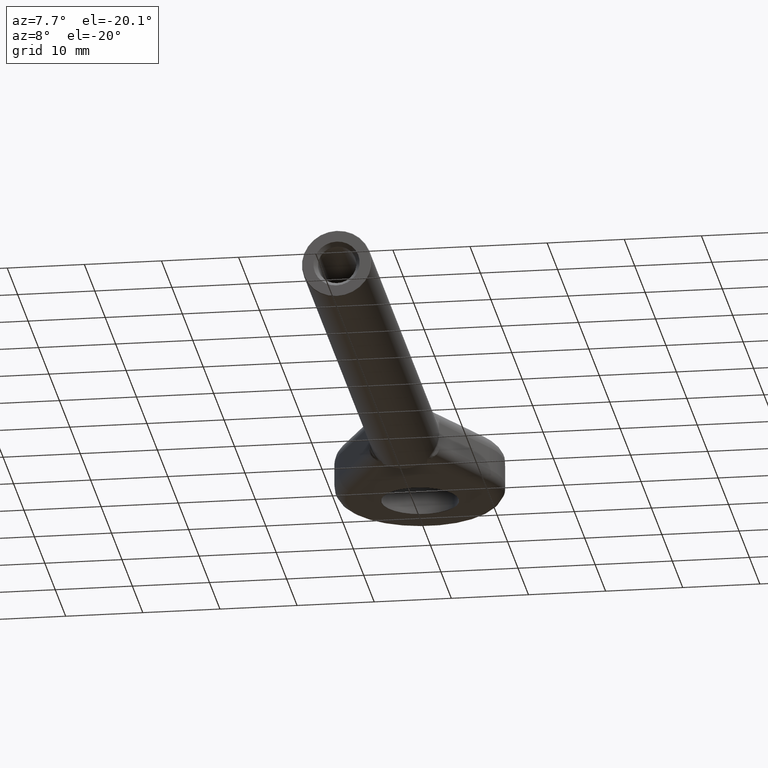
[diagram: clean part render]
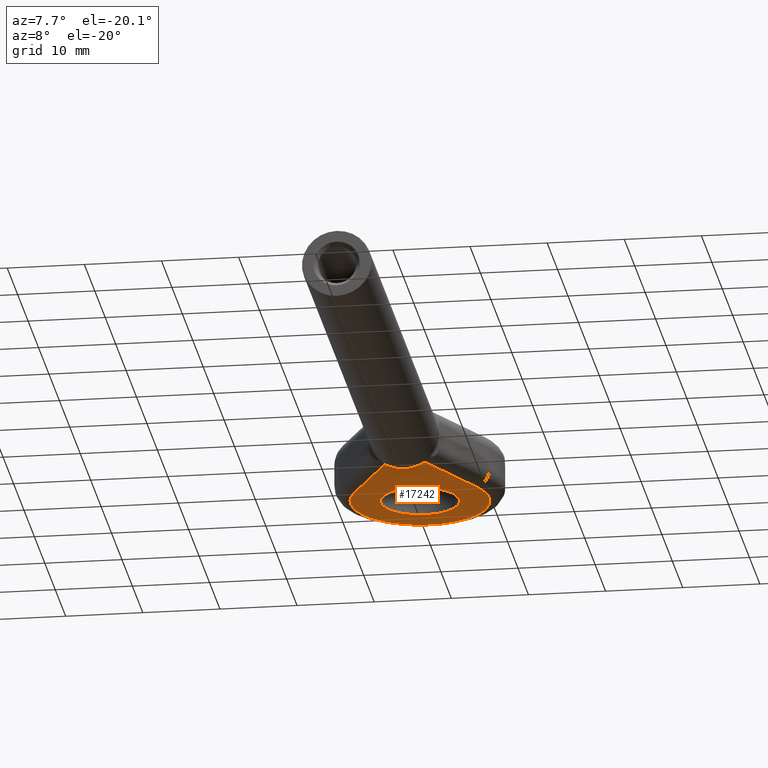
[diagram: same view with one face highlighted and labeled with its STEP entity id]
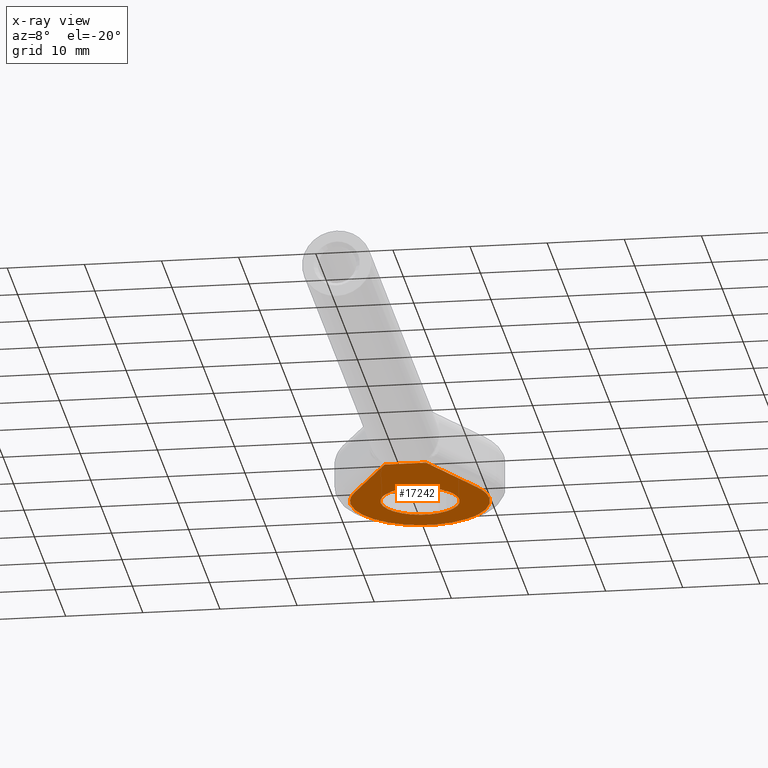
[diagram: x-ray of the same camera — body ghosted, the highlighted face saturated]
A machine part, auxiliary view. The second image highlights one B-rep face of the part: STEP entity #17242.
The next image is the same camera in x-ray: the body ghosted, the highlighted face saturated — about 0% of this face is hidden behind the body in this view.
In plain terms, the highlighted planar face has unit normal (0, 0, 1).
Its self-contained STEP definition (entity closure, byte-faithful):
#301 = DIRECTION ( 'NONE',  ( 1.000000000000000000, 0.000000000000000000, 0.000000000000000000 ) ) ;
#318 = ORIENTED_EDGE ( 'NONE', *, *, #3663, .T. ) ;
#355 = DIRECTION ( 'NONE',  ( 0.000000000000000000, 0.000000000000000000, 1.000000000000000000 ) ) ;
#572 = AXIS2_PLACEMENT_3D ( 'NONE', #17366, #949, #10495 ) ;
#949 = DIRECTION ( 'NONE',  ( -0.000000000000000000, -0.000000000000000000, -1.000000000000000000 ) ) ;
#1040 = ORIENTED_EDGE ( 'NONE', *, *, #1490, .T. ) ;
#1440 = EDGE_CURVE ( 'NONE', #13990, #12520, #3739, .T. ) ;
#1483 = CARTESIAN_POINT ( 'NONE',  ( -9.000000000000007105, 80.00000000000000000, -3.500000000000000000 ) ) ;
#1490 = EDGE_CURVE ( 'NONE', #16496, #13120, #10352, .T. ) ;
#1587 = CARTESIAN_POINT ( 'NONE',  ( 5.100000000000004086, 80.00000000000000000, -3.499999999999999556 ) ) ;
#1953 = EDGE_CURVE ( 'NONE', #5228, #13624, #10817, .T. ) ;
#2063 = PLANE ( 'NONE',  #14186 ) ;
#2175 = EDGE_CURVE ( 'NONE', #12520, #5386, #2920, .T. ) ;
#2217 = CARTESIAN_POINT ( 'NONE',  ( -5.100000000000004086, 80.00000000000000000, -3.499999999999999556 ) ) ;
#2490 = EDGE_LOOP ( 'NONE', ( #1040, #12752, #318, #3288, #17628, #10219 ) ) ;
#2605 = CIRCLE ( 'NONE', #5813, 9.000000000000007105 ) ;
#2920 = CIRCLE ( 'NONE', #8825, 9.000000000000007105 ) ;
#3288 = ORIENTED_EDGE ( 'NONE', *, *, #1440, .T. ) ;
#3438 = DIRECTION ( 'NONE',  ( -0.4682553809516096233, 0.8835931746057474889, -0.000000000000000000 ) ) ;
#3525 = VECTOR ( 'NONE', #3438, 999.9999999999998863 ) ;
#3663 = EDGE_CURVE ( 'NONE', #11788, #13990, #10578, .T. ) ;
#3739 = CIRCLE ( 'NONE', #572, 9.000000000000007105 ) ;
#3849 = EDGE_LOOP ( 'NONE', ( #11141, #8873 ) ) ;
#4286 = DIRECTION ( 'NONE',  ( -0.000000000000000000, -0.000000000000000000, -1.000000000000000000 ) ) ;
#5040 = CARTESIAN_POINT ( 'NONE',  ( 7.952338571451731397, 75.78570157143551000, -3.500000000000000000 ) ) ;
#5226 = CARTESIAN_POINT ( 'NONE',  ( 2.686967744623051768, 65.84999999999999432, -3.500000000000000000 ) ) ;
#5228 = VERTEX_POINT ( 'NONE', #2217 ) ;
#5386 = VERTEX_POINT ( 'NONE', #7038 ) ;
#5640 = VECTOR ( 'NONE', #8302, 1000.000000000000000 ) ;
#5813 = AXIS2_PLACEMENT_3D ( 'NONE', #8560, #9925, #301 ) ;
#7038 = CARTESIAN_POINT ( 'NONE',  ( 9.000000000000007105, 80.00000000000000000, -3.500000000000000000 ) ) ;
#7491 = CARTESIAN_POINT ( 'NONE',  ( -7.952338571451731397, 75.78570157143551000, -3.500000000000000000 ) ) ;
#8209 = CARTESIAN_POINT ( 'NONE',  ( 0.000000000000000000, 80.00000000000000000, -3.500000000000000000 ) ) ;
#8302 = DIRECTION ( 'NONE',  ( -1.000000000000000000, -0.000000000000000000, 0.000000000000000000 ) ) ;
#8560 = CARTESIAN_POINT ( 'NONE',  ( 0.000000000000000000, 80.00000000000000000, -3.500000000000000000 ) ) ;
#8696 = DIRECTION ( 'NONE',  ( 0.000000000000000000, 0.000000000000000000, 1.000000000000000000 ) ) ;
#8733 = CARTESIAN_POINT ( 'NONE',  ( 0.000000000000000000, 80.00000000000000000, -3.500000000000000000 ) ) ;
#8825 = AXIS2_PLACEMENT_3D ( 'NONE', #8209, #4286, #10948 ) ;
#8873 = ORIENTED_EDGE ( 'NONE', *, *, #1953, .T. ) ;
#8898 = CARTESIAN_POINT ( 'NONE',  ( 0.000000000000000000, 80.00000000000000000, -3.500000000000000000 ) ) ;
#9377 = FACE_OUTER_BOUND ( 'NONE', #2490, .T. ) ;
#9793 = CARTESIAN_POINT ( 'NONE',  ( -7.952338571451736726, 75.78570157143552422, -3.500000000000000000 ) ) ;
#9925 = DIRECTION ( 'NONE',  ( -0.000000000000000000, -0.000000000000000000, -1.000000000000000000 ) ) ;
#10044 = EDGE_CURVE ( 'NONE', #13120, #11788, #14575, .T. ) ;
#10088 = DIRECTION ( 'NONE',  ( 1.000000000000000000, 0.000000000000000000, 0.000000000000000000 ) ) ;
#10219 = ORIENTED_EDGE ( 'NONE', *, *, #11136, .T. ) ;
#10352 = LINE ( 'NONE', #5040, #14198 ) ;
#10495 = DIRECTION ( 'NONE',  ( 1.000000000000000000, 0.000000000000000000, 0.000000000000000000 ) ) ;
#10578 = LINE ( 'NONE', #7491, #3525 ) ;
#10644 = AXIS2_PLACEMENT_3D ( 'NONE', #8733, #355, #10088 ) ;
#10817 = CIRCLE ( 'NONE', #10644, 5.100000000000004086 ) ;
#10948 = DIRECTION ( 'NONE',  ( 1.000000000000000000, 0.000000000000000000, 0.000000000000000000 ) ) ;
#11136 = EDGE_CURVE ( 'NONE', #5386, #16496, #2605, .T. ) ;
#11141 = ORIENTED_EDGE ( 'NONE', *, *, #13235, .T. ) ;
#11698 = CARTESIAN_POINT ( 'NONE',  ( -2.686967744623057985, 65.85000000000000853, -3.500000000000000000 ) ) ;
#11788 = VERTEX_POINT ( 'NONE', #11698 ) ;
#12520 = VERTEX_POINT ( 'NONE', #1483 ) ;
#12752 = ORIENTED_EDGE ( 'NONE', *, *, #10044, .T. ) ;
#13120 = VERTEX_POINT ( 'NONE', #5226 ) ;
#13183 = DIRECTION ( 'NONE',  ( 0.000000000000000000, 0.000000000000000000, 1.000000000000000000 ) ) ;
#13235 = EDGE_CURVE ( 'NONE', #13624, #5228, #17146, .T. ) ;
#13624 = VERTEX_POINT ( 'NONE', #1587 ) ;
#13990 = VERTEX_POINT ( 'NONE', #9793 ) ;
#14186 = AXIS2_PLACEMENT_3D ( 'NONE', #15565, #8696, #15743 ) ;
#14198 = VECTOR ( 'NONE', #16017, 999.9999999999998863 ) ;
#14442 = DIRECTION ( 'NONE',  ( 1.000000000000000000, 0.000000000000000000, 0.000000000000000000 ) ) ;
#14575 = LINE ( 'NONE', #16749, #5640 ) ;
#15368 = CARTESIAN_POINT ( 'NONE',  ( 7.952338571451736726, 75.78570157143552422, -3.500000000000000000 ) ) ;
#15565 = CARTESIAN_POINT ( 'NONE',  ( 0.000000000000000000, 80.00000000000000000, -3.500000000000000000 ) ) ;
#15743 = DIRECTION ( 'NONE',  ( 1.000000000000000000, 0.000000000000000000, -0.000000000000000000 ) ) ;
#15870 = AXIS2_PLACEMENT_3D ( 'NONE', #8898, #13183, #14442 ) ;
#16017 = DIRECTION ( 'NONE',  ( -0.4682553809516096233, -0.8835931746057474889, 0.000000000000000000 ) ) ;
#16496 = VERTEX_POINT ( 'NONE', #15368 ) ;
#16689 = FACE_BOUND ( 'NONE', #3849, .T. ) ;
#16749 = CARTESIAN_POINT ( 'NONE',  ( 0.000000000000000000, 65.85000000000000853, -3.500000000000000000 ) ) ;
#17146 = CIRCLE ( 'NONE', #15870, 5.100000000000004086 ) ;
#17242 = ADVANCED_FACE ( 'NONE', ( #16689, #9377 ), #2063, .F. ) ;
#17366 = CARTESIAN_POINT ( 'NONE',  ( 0.000000000000000000, 80.00000000000000000, -3.500000000000000000 ) ) ;
#17628 = ORIENTED_EDGE ( 'NONE', *, *, #2175, .T. ) ;